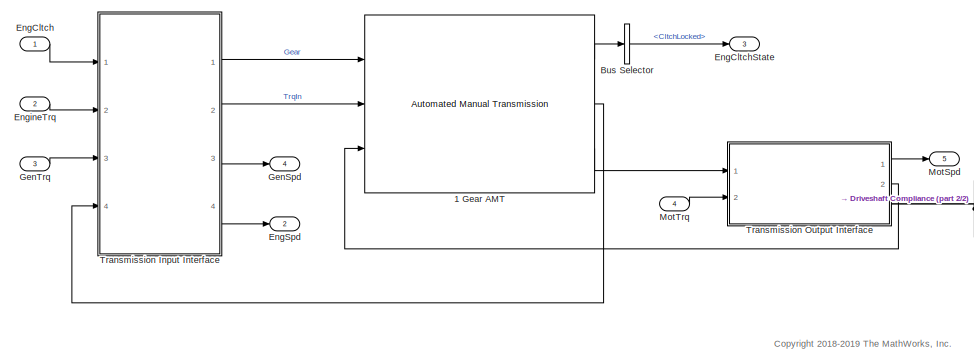
[diagram: root canvas - part 1/2, left side, full height]
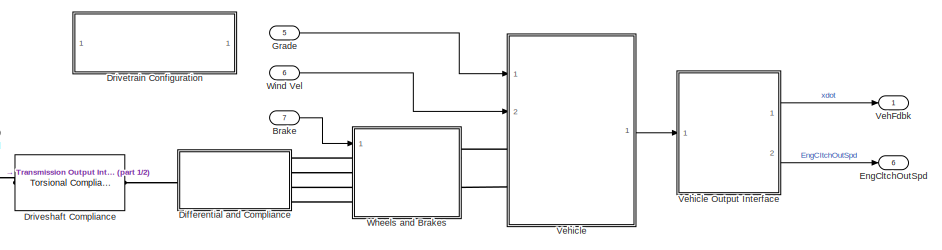
[diagram: root canvas - part 2/2, middle right region]
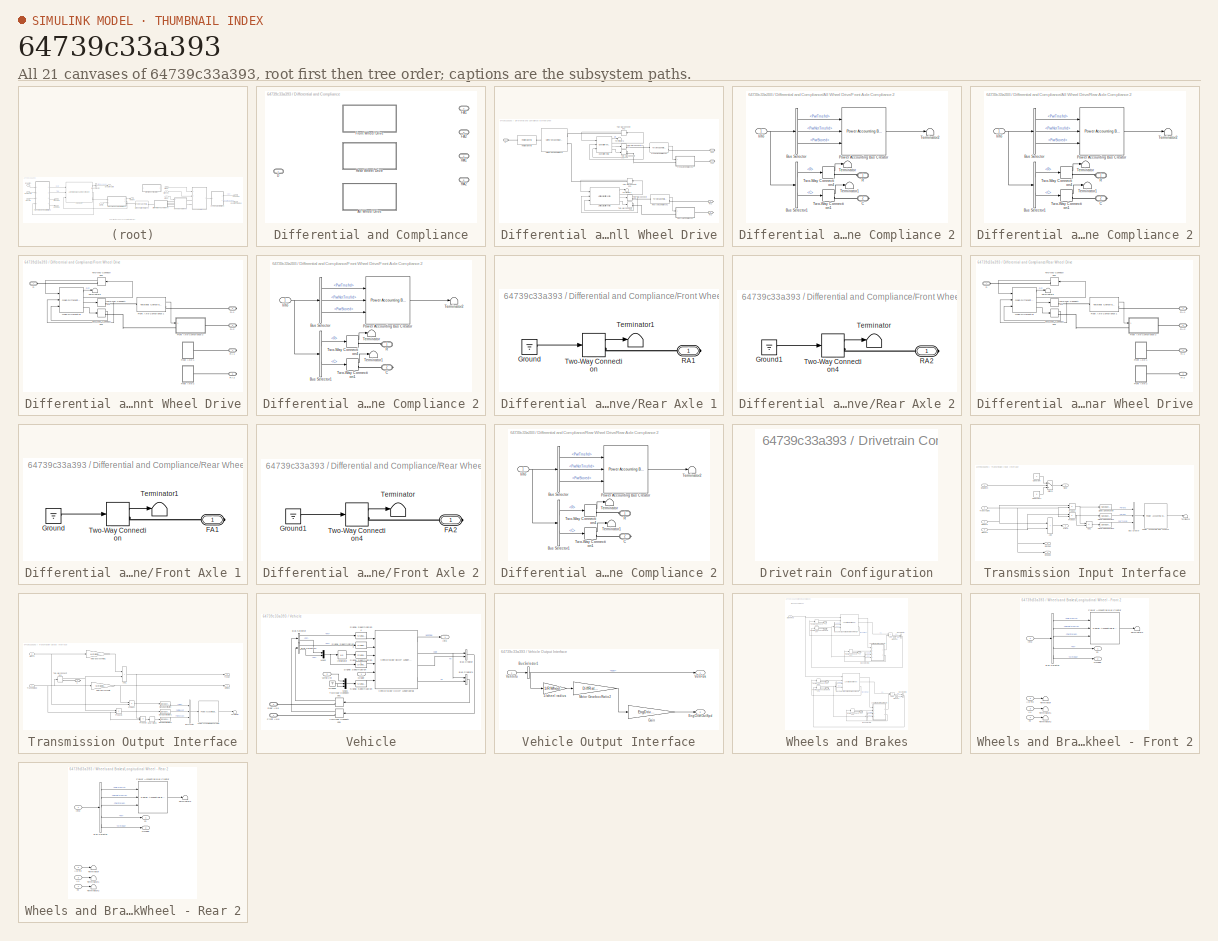
[diagram: thumbnail index - all 21 canvases of the model, root first then tree order]
MODEL slx_64739c33a393
KIND model
CONFIG AbsTol = auto
CONFIG EnableMultiTasking = off
CONFIG FixedStep = auto
CONFIG MaxStep = auto
CONFIG MinStep = auto
CONFIG RelTol = 1e-3
CONFIG SampleTimeConstraint = Unconstrained
CONFIG Solver = VariableStepAuto
CONFIG SolverName = VariableStepAuto
CONFIG StartTime = 0.0
CONFIG StopTime = 10.0
WORKSPACE source: mxarray member
WORKSPACE DiffRatio = 3.421
WORKSPACE EngDriveRatio = 0.813008130081
WORKSPACE Jengine = 0.22
WORKSPACE MotGbRatio = 2.45
WORKSPACE NF: Simulink.Parameter (value not decoded)
WORKSPACE NR: Simulink.Parameter (value not decoded)
WORKSPACE RWheel = 0.3
WORKSPACE b_axle: Simulink.Parameter (value not decoded)
WORKSPACE b_driveshaft: Simulink.Parameter (value not decoded)
WORKSPACE k_axle: Simulink.Parameter (value not decoded)
WORKSPACE k_driveshaft: Simulink.Parameter (value not decoded)
WORKSPACE wc_shaft: Simulink.Parameter (value not decoded)
BLOCK [Reference] 1 Gear AMT  REF=autolibtransamt/Automated Manual Transmission
  Ports = [3, 3]
  SourceBlock = autolibtransamt/Automated Manual Transmission
  SourceProductBaseCode = PW
  SourceType = Automated Manual Transmission
BLOCK [Inport] Brake
  Port = 7
BLOCK [BusSelector] Bus Selector
  OutputSignals = Cltch.CltchLocked
  Ports = [1, 1]
BLOCK [SubSystem] Differential and Compliance
  LabelModeActiveChoice = 0
  Ports = [0, 0, 0, 0, 0, 1, 4]
  RequestExecContextInheritance = off
  Variant = on
  VariantControlMode = Label
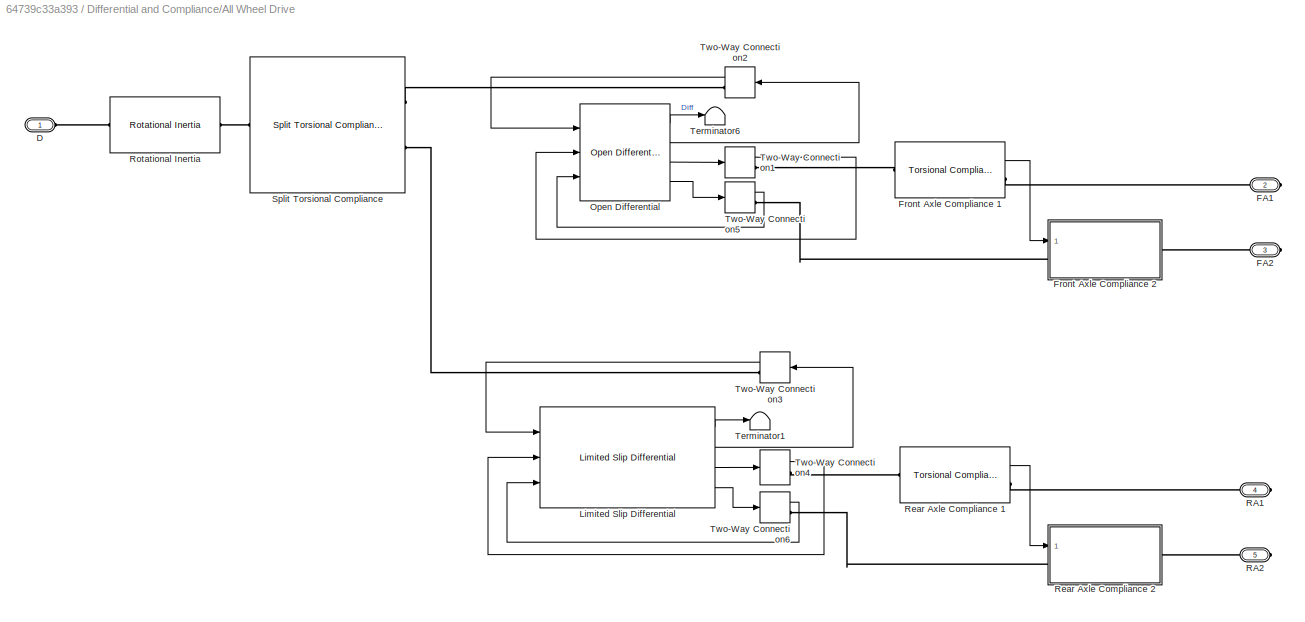
BLOCK [SubSystem] Differential and Compliance/All Wheel Drive
  Ports = [0, 0, 0, 0, 0, 1, 4]
  RequestExecContextInheritance = off
  VariantControl = 2
BLOCK [PMIOPort] Differential and Compliance/All Wheel Drive/D
  Side = Left
BLOCK [PMIOPort] Differential and Compliance/All Wheel Drive/FA1
  Port = 2
  Side = Right
BLOCK [PMIOPort] Differential and Compliance/All Wheel Drive/FA2
  Port = 3
  Side = Right
BLOCK [Reference] Differential and Compliance/All Wheel Drive/Front Axle Compliance 1  REF=autolibsharedcoupling/Torsional Compliance
  Ports = [0, 1, 0, 0, 0, 1, 1]
  SourceBlock = autolibsharedcoupling/Torsional Compliance
  SourceProductBaseCode = PW,MT,VE,VP
  SourceType = Torsional Compliance
BLOCK [SubSystem] Differential and Compliance/All Wheel Drive/Front Axle Compliance 2
  Ports = [1, 0, 0, 0, 0, 1, 1]
  RequestExecContextInheritance = off
BLOCK [BusSelector] Differential and Compliance/All Wheel Drive/Front Axle Compliance 2/Bus Selector
  OutputSignals = PwrInfo.PwrTrnsfrd,PwrInfo.PwrNotTrnsfrd,PwrInfo.PwrStored
  Ports = [1, 3]
BLOCK [BusSelector] Differential and Compliance/All Wheel Drive/Front Axle Compliance 2/Bus Selector1
  OutputSignals = Trq.R,Trq.C
  Ports = [1, 2]
BLOCK [PMIOPort] Differential and Compliance/All Wheel Drive/Front Axle Compliance 2/C
  Port = 2
  Side = Right
BLOCK [Inport] Differential and Compliance/All Wheel Drive/Front Axle Compliance 2/Info
BLOCK [Reference] Differential and Compliance/All Wheel Drive/Front Axle Compliance 2/Power Accounting Bus Creator  REF=autolibpowerinfoutils/Power Accounting Bus Creator
  Ports = [3, 1]
  SourceBlock = autolibpowerinfoutils/Power Accounting Bus Creator
  SourceProductBaseCode = PW,MT,VE,VP
  SourceType = Power Accounting Bus Creator
BLOCK [PMIOPort] Differential and Compliance/All Wheel Drive/Front Axle Compliance 2/R
  Side = Left
BLOCK [Terminator] Differential and Compliance/All Wheel Drive/Front Axle Compliance 2/Terminator
BLOCK [Terminator] Differential and Compliance/All Wheel Drive/Front Axle Compliance 2/Terminator1
BLOCK [Terminator] Differential and Compliance/All Wheel Drive/Front Axle Compliance 2/Terminator2
BLOCK [TwoWayConnection] Differential and Compliance/All Wheel Drive/Front Axle Compliance 2/Two-Way Connection1
  Ports = [1, 1, 0, 0, 0, 0, 1]
BLOCK [TwoWayConnection] Differential and Compliance/All Wheel Drive/Front Axle Compliance 2/Two-Way Connection4
  Ports = [1, 1, 0, 0, 0, 0, 1]
BLOCK [Reference] Differential and Compliance/All Wheel Drive/Limited Slip Differential  REF=autolibshareddiff/Limited Slip Differential
  Ports = [3, 4]
  SourceBlock = autolibshareddiff/Limited Slip Differential
  SourceProductBaseCode = PW,MT,VE,VP
  SourceType = Limited Slip Differential
BLOCK [Reference] Differential and Compliance/All Wheel Drive/Open Differential  REF=autolibshareddiff/Open Differential
  Ports = [3, 4]
  SourceBlock = autolibshareddiff/Open Differential
  SourceProductBaseCode = PW,MT,VE,VP
  SourceType = Open Differential
BLOCK [PMIOPort] Differential and Compliance/All Wheel Drive/RA1
  Port = 4
  Side = Right
BLOCK [PMIOPort] Differential and Compliance/All Wheel Drive/RA2
  Port = 5
  Side = Right
BLOCK [Reference] Differential and Compliance/All Wheel Drive/Rear Axle Compliance 1  REF=autolibsharedcoupling/Torsional Compliance
  Ports = [0, 1, 0, 0, 0, 1, 1]
  SourceBlock = autolibsharedcoupling/Torsional Compliance
  SourceProductBaseCode = PW,MT,VE,VP
  SourceType = Torsional Compliance
BLOCK [SubSystem] Differential and Compliance/All Wheel Drive/Rear Axle Compliance 2
  Ports = [1, 0, 0, 0, 0, 1, 1]
  RequestExecContextInheritance = off
BLOCK [BusSelector] Differential and Compliance/All Wheel Drive/Rear Axle Compliance 2/Bus Selector
  OutputSignals = PwrInfo.PwrTrnsfrd,PwrInfo.PwrNotTrnsfrd,PwrInfo.PwrStored
  Ports = [1, 3]
BLOCK [BusSelector] Differential and Compliance/All Wheel Drive/Rear Axle Compliance 2/Bus Selector1
  OutputSignals = Trq.R,Trq.C
  Ports = [1, 2]
BLOCK [PMIOPort] Differential and Compliance/All Wheel Drive/Rear Axle Compliance 2/C
  Port = 2
  Side = Right
BLOCK [Inport] Differential and Compliance/All Wheel Drive/Rear Axle Compliance 2/Info
BLOCK [Reference] Differential and Compliance/All Wheel Drive/Rear Axle Compliance 2/Power Accounting Bus Creator  REF=autolibpowerinfoutils/Power Accounting Bus Creator
  Ports = [3, 1]
  SourceBlock = autolibpowerinfoutils/Power Accounting Bus Creator
  SourceProductBaseCode = PW,MT,VE,VP
  SourceType = Power Accounting Bus Creator
BLOCK [PMIOPort] Differential and Compliance/All Wheel Drive/Rear Axle Compliance 2/R
  Side = Left
BLOCK [Terminator] Differential and Compliance/All Wheel Drive/Rear Axle Compliance 2/Terminator
BLOCK [Terminator] Differential and Compliance/All Wheel Drive/Rear Axle Compliance 2/Terminator1
BLOCK [Terminator] Differential and Compliance/All Wheel Drive/Rear Axle Compliance 2/Terminator2
BLOCK [TwoWayConnection] Differential and Compliance/All Wheel Drive/Rear Axle Compliance 2/Two-Way Connection1
  Ports = [1, 1, 0, 0, 0, 0, 1]
BLOCK [TwoWayConnection] Differential and Compliance/All Wheel Drive/Rear Axle Compliance 2/Two-Way Connection4
  Ports = [1, 1, 0, 0, 0, 0, 1]
BLOCK [Reference] Differential and Compliance/All Wheel Drive/Rotational Inertia  REF=autolibsharedcoupling/Rotational Inertia
  Ports = [0, 0, 0, 0, 0, 1, 1]
  SourceBlock = autolibsharedcoupling/Rotational Inertia
  SourceProductBaseCode = PW,MT,VE,VP
  SourceType = Rotational Inertia
BLOCK [Reference] Differential and Compliance/All Wheel Drive/Split Torsional Compliance  REF=autolibsharedcoupling/Split Torsional Compliance
  Ports = [0, 0, 0, 0, 0, 1, 2]
  SourceBlock = autolibsharedcoupling/Split Torsional Compliance
  SourceProductBaseCode = PW,MT,VE,VP
  SourceType = Split Torsional Compliance
BLOCK [Terminator] Differential and Compliance/All Wheel Drive/Terminator1
BLOCK [Terminator] Differential and Compliance/All Wheel Drive/Terminator6
BLOCK [TwoWayConnection] Differential and Compliance/All Wheel Drive/Two-Way Connection1
  Ports = [1, 1, 0, 0, 0, 0, 1]
BLOCK [TwoWayConnection] Differential and Compliance/All Wheel Drive/Two-Way Connection2
  Ports = [1, 1, 0, 0, 0, 0, 1]
BLOCK [TwoWayConnection] Differential and Compliance/All Wheel Drive/Two-Way Connection3
  Ports = [1, 1, 0, 0, 0, 0, 1]
BLOCK [TwoWayConnection] Differential and Compliance/All Wheel Drive/Two-Way Connection4
  NameLocation = top
  Ports = [1, 1, 0, 0, 0, 0, 1]
BLOCK [TwoWayConnection] Differential and Compliance/All Wheel Drive/Two-Way Connection5
  Ports = [1, 1, 0, 0, 0, 0, 1]
BLOCK [TwoWayConnection] Differential and Compliance/All Wheel Drive/Two-Way Connection6
  Ports = [1, 1, 0, 0, 0, 0, 1]
BLOCK [PMIOPort] Differential and Compliance/D
  Side = Left
BLOCK [PMIOPort] Differential and Compliance/FA1
  Port = 2
  Side = Right
BLOCK [PMIOPort] Differential and Compliance/FA2
  Port = 3
  Side = Right
BLOCK [SubSystem] Differential and Compliance/Front Wheel Drive
  Ports = [0, 0, 0, 0, 0, 1, 4]
  RequestExecContextInheritance = off
  VariantControl = 0
BLOCK [PMIOPort] Differential and Compliance/Front Wheel Drive/D
  Side = Left
BLOCK [PMIOPort] Differential and Compliance/Front Wheel Drive/FA1
  Port = 2
  Side = Right
BLOCK [PMIOPort] Differential and Compliance/Front Wheel Drive/FA2
  Port = 3
  Side = Right
BLOCK [Reference] Differential and Compliance/Front Wheel Drive/Front Axle Compliance 1  REF=autolibsharedcoupling/Torsional Compliance
  Ports = [0, 1, 0, 0, 0, 1, 1]
  SourceBlock = autolibsharedcoupling/Torsional Compliance
  SourceProductBaseCode = PW,MT,VE,VP
  SourceType = Torsional Compliance
BLOCK [SubSystem] Differential and Compliance/Front Wheel Drive/Front Axle Compliance 2
  Ports = [1, 0, 0, 0, 0, 1, 1]
  RequestExecContextInheritance = off
BLOCK [BusSelector] Differential and Compliance/Front Wheel Drive/Front Axle Compliance 2/Bus Selector
  OutputSignals = PwrInfo.PwrTrnsfrd,PwrInfo.PwrNotTrnsfrd,PwrInfo.PwrStored
  Ports = [1, 3]
BLOCK [BusSelector] Differential and Compliance/Front Wheel Drive/Front Axle Compliance 2/Bus Selector1
  OutputSignals = Trq.R,Trq.C
  Ports = [1, 2]
BLOCK [PMIOPort] Differential and Compliance/Front Wheel Drive/Front Axle Compliance 2/C
  Port = 2
  Side = Right
BLOCK [Inport] Differential and Compliance/Front Wheel Drive/Front Axle Compliance 2/Info
BLOCK [Reference] Differential and Compliance/Front Wheel Drive/Front Axle Compliance 2/Power Accounting Bus Creator  REF=autolibpowerinfoutils/Power Accounting Bus Creator
  Ports = [3, 1]
  SourceBlock = autolibpowerinfoutils/Power Accounting Bus Creator
  SourceProductBaseCode = PW,MT,VE,VP
  SourceType = Power Accounting Bus Creator
BLOCK [PMIOPort] Differential and Compliance/Front Wheel Drive/Front Axle Compliance 2/R
  Side = Left
BLOCK [Terminator] Differential and Compliance/Front Wheel Drive/Front Axle Compliance 2/Terminator
BLOCK [Terminator] Differential and Compliance/Front Wheel Drive/Front Axle Compliance 2/Terminator1
BLOCK [Terminator] Differential and Compliance/Front Wheel Drive/Front Axle Compliance 2/Terminator2
BLOCK [TwoWayConnection] Differential and Compliance/Front Wheel Drive/Front Axle Compliance 2/Two-Way Connection1
  Ports = [1, 1, 0, 0, 0, 0, 1]
BLOCK [TwoWayConnection] Differential and Compliance/Front Wheel Drive/Front Axle Compliance 2/Two-Way Connection4
  Ports = [1, 1, 0, 0, 0, 0, 1]
BLOCK [Reference] Differential and Compliance/Front Wheel Drive/Open Differential  REF=autolibshareddiff/Open Differential
  Ports = [3, 4]
  SourceBlock = autolibshareddiff/Open Differential
  SourceProductBaseCode = PW,MT,VE,VP
  SourceType = Open Differential
BLOCK [PMIOPort] Differential and Compliance/Front Wheel Drive/RA1
  Port = 4
  Side = Right
BLOCK [PMIOPort] Differential and Compliance/Front Wheel Drive/RA2
  Port = 5
  Side = Right
BLOCK [SubSystem] Differential and Compliance/Front Wheel Drive/Rear Axle 1
  Ports = [0, 0, 0, 0, 0, 0, 1]
  RequestExecContextInheritance = off
BLOCK [Ground] Differential and Compliance/Front Wheel Drive/Rear Axle 1/Ground
BLOCK [PMIOPort] Differential and Compliance/Front Wheel Drive/Rear Axle 1/RA1
  Side = Right
BLOCK [Terminator] Differential and Compliance/Front Wheel Drive/Rear Axle 1/Terminator1
BLOCK [TwoWayConnection] Differential and Compliance/Front Wheel Drive/Rear Axle 1/Two-Way Connection
  Ports = [1, 1, 0, 0, 0, 0, 1]
BLOCK [SubSystem] Differential and Compliance/Front Wheel Drive/Rear Axle 2
  Ports = [0, 0, 0, 0, 0, 0, 1]
  RequestExecContextInheritance = off
BLOCK [Ground] Differential and Compliance/Front Wheel Drive/Rear Axle 2/Ground1
BLOCK [PMIOPort] Differential and Compliance/Front Wheel Drive/Rear Axle 2/RA2
  Side = Right
BLOCK [Terminator] Differential and Compliance/Front Wheel Drive/Rear Axle 2/Terminator
BLOCK [TwoWayConnection] Differential and Compliance/Front Wheel Drive/Rear Axle 2/Two-Way Connection4
  Ports = [1, 1, 0, 0, 0, 0, 1]
BLOCK [Terminator] Differential and Compliance/Front Wheel Drive/Terminator6
BLOCK [TwoWayConnection] Differential and Compliance/Front Wheel Drive/Two-Way Connection1
  Ports = [1, 1, 0, 0, 0, 0, 1]
BLOCK [TwoWayConnection] Differential and Compliance/Front Wheel Drive/Two-Way Connection2
  Ports = [1, 1, 0, 0, 0, 0, 1]
BLOCK [TwoWayConnection] Differential and Compliance/Front Wheel Drive/Two-Way Connection3
  Ports = [1, 1, 0, 0, 0, 0, 1]
BLOCK [PMIOPort] Differential and Compliance/RA1
  Port = 4
  Side = Right
BLOCK [PMIOPort] Differential and Compliance/RA2
  Port = 5
  Side = Right
BLOCK [SubSystem] Differential and Compliance/Rear Wheel Drive
  Ports = [0, 0, 0, 0, 0, 1, 4]
  RequestExecContextInheritance = off
  VariantControl = 1
BLOCK [PMIOPort] Differential and Compliance/Rear Wheel Drive/D
  Side = Left
BLOCK [PMIOPort] Differential and Compliance/Rear Wheel Drive/FA1
  Port = 2
  Side = Right
BLOCK [PMIOPort] Differential and Compliance/Rear Wheel Drive/FA2
  Port = 3
  Side = Right
BLOCK [SubSystem] Differential and Compliance/Rear Wheel Drive/Front Axle 1
  Ports = [0, 0, 0, 0, 0, 0, 1]
  RequestExecContextInheritance = off
BLOCK [PMIOPort] Differential and Compliance/Rear Wheel Drive/Front Axle 1/FA1
  Side = Right
BLOCK [Ground] Differential and Compliance/Rear Wheel Drive/Front Axle 1/Ground
BLOCK [Terminator] Differential and Compliance/Rear Wheel Drive/Front Axle 1/Terminator1
BLOCK [TwoWayConnection] Differential and Compliance/Rear Wheel Drive/Front Axle 1/Two-Way Connection
  Ports = [1, 1, 0, 0, 0, 0, 1]
BLOCK [SubSystem] Differential and Compliance/Rear Wheel Drive/Front Axle 2
  Ports = [0, 0, 0, 0, 0, 0, 1]
  RequestExecContextInheritance = off
BLOCK [PMIOPort] Differential and Compliance/Rear Wheel Drive/Front Axle 2/FA2
  Side = Right
BLOCK [Ground] Differential and Compliance/Rear Wheel Drive/Front Axle 2/Ground1
BLOCK [Terminator] Differential and Compliance/Rear Wheel Drive/Front Axle 2/Terminator
BLOCK [TwoWayConnection] Differential and Compliance/Rear Wheel Drive/Front Axle 2/Two-Way Connection4
  Ports = [1, 1, 0, 0, 0, 0, 1]
BLOCK [Reference] Differential and Compliance/Rear Wheel Drive/Open Differential  REF=autolibshareddiff/Open Differential
  Ports = [3, 4]
  SourceBlock = autolibshareddiff/Open Differential
  SourceProductBaseCode = PW,MT,VE,VP
  SourceType = Open Differential
BLOCK [PMIOPort] Differential and Compliance/Rear Wheel Drive/RA1
  Port = 4
  Side = Right
BLOCK [PMIOPort] Differential and Compliance/Rear Wheel Drive/RA2
  Port = 5
  Side = Right
BLOCK [Reference] Differential and Compliance/Rear Wheel Drive/Rear Axle Compliance 1  REF=autolibsharedcoupling/Torsional Compliance
  Ports = [0, 1, 0, 0, 0, 1, 1]
  SourceBlock = autolibsharedcoupling/Torsional Compliance
  SourceProductBaseCode = PW,MT,VE,VP
  SourceType = Torsional Compliance
BLOCK [SubSystem] Differential and Compliance/Rear Wheel Drive/Rear Axle Compliance 2
  Ports = [1, 0, 0, 0, 0, 1, 1]
  RequestExecContextInheritance = off
BLOCK [BusSelector] Differential and Compliance/Rear Wheel Drive/Rear Axle Compliance 2/Bus Selector
  OutputSignals = PwrInfo.PwrTrnsfrd,PwrInfo.PwrNotTrnsfrd,PwrInfo.PwrStored
  Ports = [1, 3]
BLOCK [BusSelector] Differential and Compliance/Rear Wheel Drive/Rear Axle Compliance 2/Bus Selector1
  OutputSignals = Trq.R,Trq.C
  Ports = [1, 2]
BLOCK [PMIOPort] Differential and Compliance/Rear Wheel Drive/Rear Axle Compliance 2/C
  Port = 2
  Side = Right
BLOCK [Inport] Differential and Compliance/Rear Wheel Drive/Rear Axle Compliance 2/Info
BLOCK [Reference] Differential and Compliance/Rear Wheel Drive/Rear Axle Compliance 2/Power Accounting Bus Creator  REF=autolibpowerinfoutils/Power Accounting Bus Creator
  Ports = [3, 1]
  SourceBlock = autolibpowerinfoutils/Power Accounting Bus Creator
  SourceProductBaseCode = PW,MT,VE,VP
  SourceType = Power Accounting Bus Creator
BLOCK [PMIOPort] Differential and Compliance/Rear Wheel Drive/Rear Axle Compliance 2/R
  Side = Left
BLOCK [Terminator] Differential and Compliance/Rear Wheel Drive/Rear Axle Compliance 2/Terminator
BLOCK [Terminator] Differential and Compliance/Rear Wheel Drive/Rear Axle Compliance 2/Terminator1
BLOCK [Terminator] Differential and Compliance/Rear Wheel Drive/Rear Axle Compliance 2/Terminator2
BLOCK [TwoWayConnection] Differential and Compliance/Rear Wheel Drive/Rear Axle Compliance 2/Two-Way Connection1
  Ports = [1, 1, 0, 0, 0, 0, 1]
BLOCK [TwoWayConnection] Differential and Compliance/Rear Wheel Drive/Rear Axle Compliance 2/Two-Way Connection4
  Ports = [1, 1, 0, 0, 0, 0, 1]
BLOCK [Terminator] Differential and Compliance/Rear Wheel Drive/Terminator6
BLOCK [TwoWayConnection] Differential and Compliance/Rear Wheel Drive/Two-Way Connection1
  Ports = [1, 1, 0, 0, 0, 0, 1]
BLOCK [TwoWayConnection] Differential and Compliance/Rear Wheel Drive/Two-Way Connection2
  Ports = [1, 1, 0, 0, 0, 0, 1]
BLOCK [TwoWayConnection] Differential and Compliance/Rear Wheel Drive/Two-Way Connection3
  Ports = [1, 1, 0, 0, 0, 0, 1]
BLOCK [Reference] Driveshaft Compliance  REF=autolibsharedcoupling/Torsional Compliance
  Ports = [0, 0, 0, 0, 0, 1, 1]
  SourceBlock = autolibsharedcoupling/Torsional Compliance
  SourceProductBaseCode = PW,MT,VE,VP
  SourceType = Torsional Compliance
BLOCK [SubSystem] Drivetrain Configuration
  AttributesFormatString = Active Mode: %<drivetrainMode>
  Ports = []
  RequestExecContextInheritance = off
BLOCK [Inport] EngCltch
  OutDataTypeStr = boolean
BLOCK [Outport] EngCltchOutSpd
  BusOutputAsStruct = on
  Port = 6
  SignalType = real
  VarSizeSig = No
  VectorParamsAs1DForOutWhenUnconnected = off
BLOCK [Outport] EngCltchState
  BusOutputAsStruct = on
  Port = 3
  SignalType = real
  VarSizeSig = No
  VectorParamsAs1DForOutWhenUnconnected = off
BLOCK [Outport] EngSpd
  BusOutputAsStruct = on
  Port = 2
  SignalType = real
  VarSizeSig = No
  VectorParamsAs1DForOutWhenUnconnected = off
BLOCK [Inport] EngineTrq
  Port = 2
BLOCK [Outport] GenSpd
  BusOutputAsStruct = on
  Port = 4
  SignalType = real
  VarSizeSig = No
  VectorParamsAs1DForOutWhenUnconnected = off
BLOCK [Inport] GenTrq
  Port = 3
BLOCK [Inport] Grade
  Port = 5
BLOCK [Outport] MotSpd
  BusOutputAsStruct = on
  Port = 5
  SignalType = real
  VarSizeSig = No
  VectorParamsAs1DForOutWhenUnconnected = off
BLOCK [Inport] MotTrq
  Port = 4
BLOCK [SubSystem] Transmission Input Interface
  Ports = [4, 4]
  RequestExecContextInheritance = off
BLOCK [Sum] Transmission Input Interface/Add
  IconShape = rectangular
  Ports = [2, 1]
BLOCK [Sum] Transmission Input Interface/Add1
  IconShape = rectangular
  Inputs = --
  Ports = [2, 1]
BLOCK [BusCreator] Transmission Input Interface/Bus Creator
  DisplayOption = bar
  InheritFromInputs = on
  Inputs = 3
  Ports = [3, 1]
BLOCK [Constant] Transmission Input Interface/Constant
BLOCK [Constant] Transmission Input Interface/Constant1
  Value = 0
BLOCK [Inport] Transmission Input Interface/EngCltch
  OutDataTypeStr = boolean
BLOCK [Outport] Transmission Input Interface/EngSpd
  Port = 4
  VectorParamsAs1DForOutWhenUnconnected = off
BLOCK [Inport] Transmission Input Interface/EngTrq
  Port = 2
BLOCK [Outport] Transmission Input Interface/Gear
  VectorParamsAs1DForOutWhenUnconnected = off
BLOCK [Outport] Transmission Input Interface/GenSpd
  Port = 3
  VectorParamsAs1DForOutWhenUnconnected = off
BLOCK [Inport] Transmission Input Interface/GenTrq
  Port = 3
BLOCK [Reference] Transmission Input Interface/Power Accounting Bus Creator  REF=autolibpowerinfoutils/Power Accounting Bus Creator
  Ports = [1, 1]
  SourceBlock = autolibpowerinfoutils/Power Accounting Bus Creator
  SourceProductBaseCode = PW,MT,VE,VP
  SourceType = Power Accounting Bus Creator
BLOCK [Product] Transmission Input Interface/Product
  Ports = [2, 1]
BLOCK [Product] Transmission Input Interface/Product1
  Ports = [2, 1]
BLOCK [SignalSpecification] Transmission Input Interface/Signal Specification
  Unit = W
BLOCK [SignalSpecification] Transmission Input Interface/Signal Specification1
  Unit = W
BLOCK [SignalSpecification] Transmission Input Interface/Signal Specification2
  Unit = W
BLOCK [Switch] Transmission Input Interface/Switch
  Criteria = u2 ~= 0
  InputSameDT = off
  SaturateOnIntegerOverflow = off
BLOCK [Terminator] Transmission Input Interface/Terminator
BLOCK [Inport] Transmission Input Interface/TransInSpd
  Port = 4
BLOCK [Outport] Transmission Input Interface/TrqIn
  Port = 2
  VectorParamsAs1DForOutWhenUnconnected = off
BLOCK [SubSystem] Transmission Output Interface
  Ports = [2, 2, 0, 0, 0, 0, 1]
  RequestExecContextInheritance = off
BLOCK [Sum] Transmission Output Interface/Add1
  IconShape = rectangular
  Ports = [2, 1]
BLOCK [BusCreator] Transmission Output Interface/Bus Creator
  DisplayOption = bar
  InheritFromInputs = on
  Inputs = 3
  Ports = [3, 1]
BLOCK [PMIOPort] Transmission Output Interface/C
  Side = Right
BLOCK [Outport] Transmission Output Interface/MotSpd
  VectorParamsAs1DForOutWhenUnconnected = off
BLOCK [Inport] Transmission Output Interface/MotTrq
  Port = 2
BLOCK [Gain] Transmission Output Interface/Motor Gearbox Ratio
  Gain = MotGbRatio
BLOCK [Gain] Transmission Output Interface/Motor Gearbox Ratio1
  Gain = MotGbRatio
BLOCK [Reference] Transmission Output Interface/Power Accounting Bus Creator  REF=autolibpowerinfoutils/Power Accounting Bus Creator
  Ports = [1, 1]
  SourceBlock = autolibpowerinfoutils/Power Accounting Bus Creator
  SourceProductBaseCode = PW,MT,VE,VP
  SourceType = Power Accounting Bus Creator
BLOCK [Product] Transmission Output Interface/Product
  Ports = [2, 1]
BLOCK [Product] Transmission Output Interface/Product1
  Ports = [2, 1]
BLOCK [Product] Transmission Output Interface/Product2
  Ports = [2, 1]
BLOCK [SignalSpecification] Transmission Output Interface/Signal Specification
  Unit = W
BLOCK [SignalSpecification] Transmission Output Interface/Signal Specification1
  Unit = W
BLOCK [SignalSpecification] Transmission Output Interface/Signal Specification2
  Unit = W
BLOCK [Terminator] Transmission Output Interface/Terminator
BLOCK [Inport] Transmission Output Interface/TransOutSpd
BLOCK [Outport] Transmission Output Interface/TrqOut
  Port = 2
  VectorParamsAs1DForOutWhenUnconnected = off
BLOCK [TwoWayConnection] Transmission Output Interface/Two-Way Connection1
  NameLocation = top
  Ports = [1, 1, 0, 0, 0, 0, 1]
BLOCK [UnaryMinus] Transmission Output Interface/Unary Minus
BLOCK [Outport] VehFdbk
  VectorParamsAs1DForOutWhenUnconnected = off
BLOCK [SubSystem] Vehicle
  Ports = [2, 1, 0, 0, 0, 2]
  RequestExecContextInheritance = off
BLOCK [SubSystem] Vehicle Output Interface
  Ports = [1, 2]
  RequestExecContextInheritance = off
BLOCK [Gain] Vehicle Output Interface/1//wheel radius
  Gain = 1/RWheel
BLOCK [BusSelector] Vehicle Output Interface/Bus Selector1
  OutputSignals = BdyFrm.Cg.Vel.xdot
  Ports = [1, 1]
BLOCK [Outport] Vehicle Output Interface/EngCltchOutSpd
  Port = 2
  VectorParamsAs1DForOutWhenUnconnected = off
BLOCK [Gain] Vehicle Output Interface/Gain
  Gain = EngDriveRatio
BLOCK [Gain] Vehicle Output Interface/Motor Gearbox Ratio2
  Gain = DiffRatio
BLOCK [Outport] Vehicle Output Interface/VehFbk
  VectorParamsAs1DForOutWhenUnconnected = off
BLOCK [Inport] Vehicle Output Interface/VehInfo
BLOCK [BusCreator] Vehicle/Bus Creator
  DisplayOption = bar
  InheritFromInputs = on
  Inputs = 2
  Ports = [2, 1]
BLOCK [BusCreator] Vehicle/Bus Creator1
  DisplayOption = bar
  InheritFromInputs = on
  Inputs = 2
  Ports = [2, 1]
BLOCK [BusSelector] Vehicle/Bus Selector
  OutputSignals = Fx,Fz
  Ports = [1, 2]
BLOCK [BusSelector] Vehicle/Bus Selector2
  OutputSignals = Fx,Fz
  Ports = [1, 2]
BLOCK [PMIOPort] Vehicle/Front Axle
  Side = Left
BLOCK [Inport] Vehicle/Grade
  Unit = deg
BLOCK [Ground] Vehicle/Ground
BLOCK [Outport] Vehicle/Info
  VectorParamsAs1DForOutWhenUnconnected = off
BLOCK [Integrator] Vehicle/Integrator
  Ports = [1, 1]
BLOCK [Mux] Vehicle/Mux1
  DisplayOption = bar
  Inputs = 3
  Ports = [3, 1]
BLOCK [Mux] Vehicle/Mux2
  DisplayOption = bar
  Inputs = 2
  Ports = [2, 1]
BLOCK [PMIOPort] Vehicle/Rear Axle
  Port = 2
  Side = Left
BLOCK [SignalSpecification] Vehicle/Signal Specification
  Unit = m/s
BLOCK [SignalSpecification] Vehicle/Signal Specification1
  Unit = m
BLOCK [SignalSpecification] Vehicle/Signal Specification2
  Unit = m/s
BLOCK [SignalSpecification] Vehicle/Signal Specification3
  Unit = N
BLOCK [SignalSpecification] Vehicle/Signal Specification4
  Unit = N
BLOCK [TwoWayConnection] Vehicle/Two-Way Connection1
  Ports = [1, 1, 0, 0, 0, 0, 1]
BLOCK [TwoWayConnection] Vehicle/Two-Way Connection8
  Ports = [1, 1, 0, 0, 0, 0, 1]
BLOCK [Reference] Vehicle/Vehicle Body 3 DOF Longitudinal  REF=autolibshared/Vehicle Body 3DOF Longitudinal
  Ports = [6, 4]
  SourceBlock = autolibshared/Vehicle Body 3DOF Longitudinal
  SourceProductBaseCode = PW,MT,VE,VP
  SourceType = Vehicle Body 3DOF Longitudinal
BLOCK [Inport] Vehicle/Wind Vel
  Port = 2
  Unit = m/s
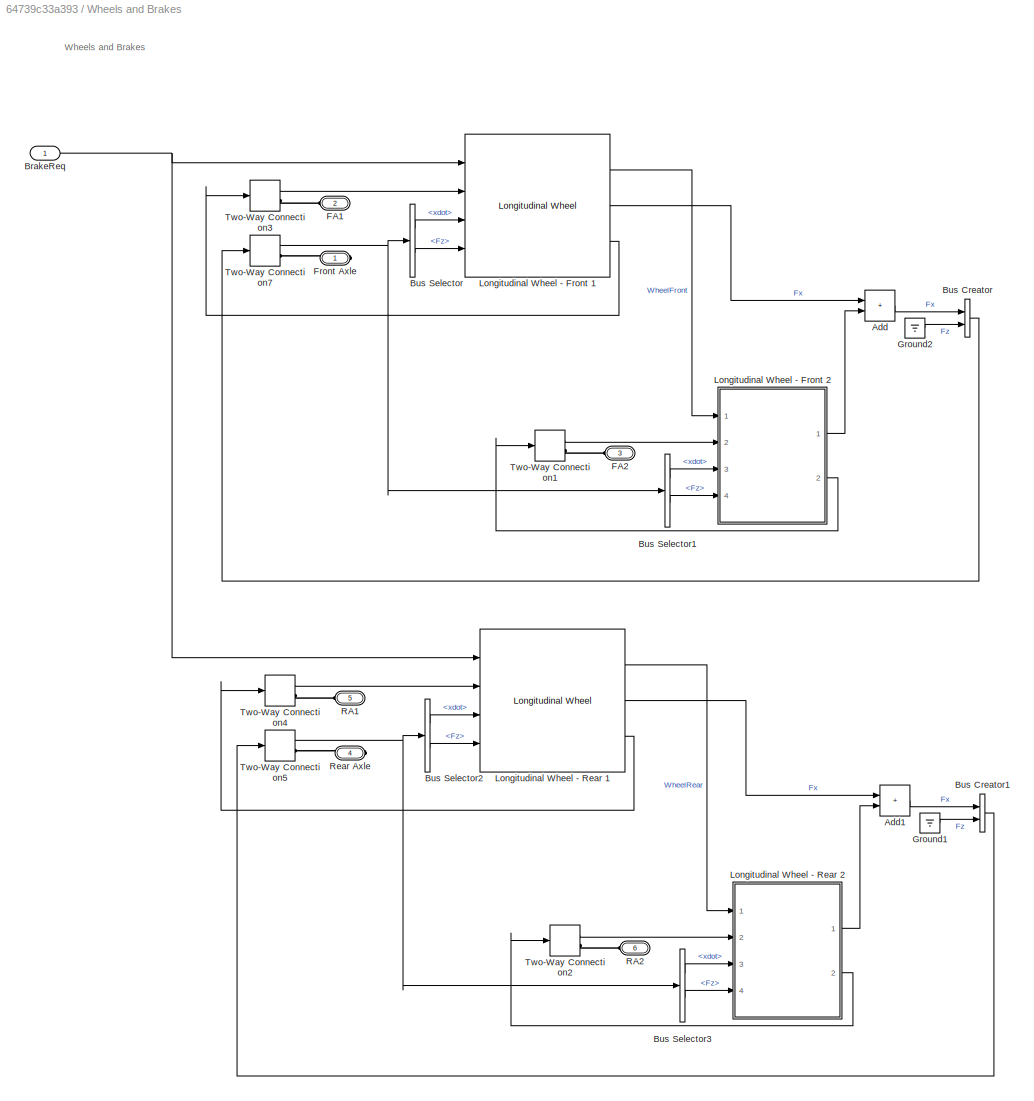
BLOCK [SubSystem] Wheels and Brakes
  Ports = [1, 0, 0, 0, 0, 4, 2]
  RequestExecContextInheritance = off
  VariantControl = 0
BLOCK [Sum] Wheels and Brakes/Add
  IconShape = rectangular
  Ports = [2, 1]
BLOCK [Sum] Wheels and Brakes/Add1
  IconShape = rectangular
  Ports = [2, 1]
BLOCK [Inport] Wheels and Brakes/BrakeReq
BLOCK [BusCreator] Wheels and Brakes/Bus Creator
  DisplayOption = bar
  InheritFromInputs = on
  Inputs = 2
  Ports = [2, 1]
BLOCK [BusCreator] Wheels and Brakes/Bus Creator1
  DisplayOption = bar
  InheritFromInputs = on
  Inputs = 2
  Ports = [2, 1]
BLOCK [BusSelector] Wheels and Brakes/Bus Selector
  OutputSignals = xdot,Fz
  Ports = [1, 2]
BLOCK [BusSelector] Wheels and Brakes/Bus Selector1
  OutputSignals = xdot,Fz
  Ports = [1, 2]
BLOCK [BusSelector] Wheels and Brakes/Bus Selector2
  OutputSignals = xdot,Fz
  Ports = [1, 2]
BLOCK [BusSelector] Wheels and Brakes/Bus Selector3
  OutputSignals = xdot,Fz
  Ports = [1, 2]
BLOCK [PMIOPort] Wheels and Brakes/FA1
  Port = 2
  Side = Left
BLOCK [PMIOPort] Wheels and Brakes/FA2
  Port = 3
  Side = Left
BLOCK [PMIOPort] Wheels and Brakes/Front Axle
  Side = Right
BLOCK [Ground] Wheels and Brakes/Ground1
BLOCK [Ground] Wheels and Brakes/Ground2
BLOCK [Reference] Wheels and Brakes/Longitudinal Wheel - Front 1  REF=autolibshared/Longitudinal Wheel
  AttributesFormatString = Brake Type: %<BrakeType>
  Ports = [4, 3]
  SourceBlock = autolibshared/Longitudinal Wheel
  SourceProductBaseCode = PW,MT,VE,VP
  SourceType = Longitudinal Wheel
BLOCK [SubSystem] Wheels and Brakes/Longitudinal Wheel - Front 2
  Ports = [4, 2]
  RequestExecContextInheritance = off
BLOCK [Inport] Wheels and Brakes/Longitudinal Wheel - Front 2/AxlTrq
  Port = 2
BLOCK [BusSelector] Wheels and Brakes/Longitudinal Wheel - Front 2/Bus Selector
  OutputSignals = PwrInfo.PwrTrnsfrd,PwrInfo.PwrNotTrnsfrd,PwrInfo.PwrStored,Fx,Omega
  Ports = [1, 5]
BLOCK [Outport] Wheels and Brakes/Longitudinal Wheel - Front 2/Fx
  VectorParamsAs1DForOutWhenUnconnected = off
BLOCK [Inport] Wheels and Brakes/Longitudinal Wheel - Front 2/Fz
  Port = 4
BLOCK [Inport] Wheels and Brakes/Longitudinal Wheel - Front 2/Info
BLOCK [Outport] Wheels and Brakes/Longitudinal Wheel - Front 2/Omega
  Port = 2
  VectorParamsAs1DForOutWhenUnconnected = off
BLOCK [Reference] Wheels and Brakes/Longitudinal Wheel - Front 2/Power Accounting Bus Creator  REF=autolibpowerinfoutils/Power Accounting Bus Creator
  Ports = [3, 1]
  SourceBlock = autolibpowerinfoutils/Power Accounting Bus Creator
  SourceProductBaseCode = PW,MT,VE,VP
  SourceType = Power Accounting Bus Creator
BLOCK [Terminator] Wheels and Brakes/Longitudinal Wheel - Front 2/Terminator
BLOCK [Terminator] Wheels and Brakes/Longitudinal Wheel - Front 2/Terminator1
BLOCK [Terminator] Wheels and Brakes/Longitudinal Wheel - Front 2/Terminator2
BLOCK [Terminator] Wheels and Brakes/Longitudinal Wheel - Front 2/Terminator3
BLOCK [Inport] Wheels and Brakes/Longitudinal Wheel - Front 2/Vx
  Port = 3
BLOCK [Reference] Wheels and Brakes/Longitudinal Wheel - Rear 1  REF=autolibshared/Longitudinal Wheel
  AttributesFormatString = Brake Type: %<BrakeType>
  Ports = [4, 3]
  SourceBlock = autolibshared/Longitudinal Wheel
  SourceProductBaseCode = PW,MT,VE,VP
  SourceType = Longitudinal Wheel
BLOCK [SubSystem] Wheels and Brakes/Longitudinal Wheel - Rear 2
  Ports = [4, 2]
  RequestExecContextInheritance = off
BLOCK [Inport] Wheels and Brakes/Longitudinal Wheel - Rear 2/AxlTrq
  Port = 2
BLOCK [BusSelector] Wheels and Brakes/Longitudinal Wheel - Rear 2/Bus Selector
  OutputSignals = PwrInfo.PwrTrnsfrd,PwrInfo.PwrNotTrnsfrd,PwrInfo.PwrStored,Fx,Omega
  Ports = [1, 5]
BLOCK [Outport] Wheels and Brakes/Longitudinal Wheel - Rear 2/Fx
  VectorParamsAs1DForOutWhenUnconnected = off
BLOCK [Inport] Wheels and Brakes/Longitudinal Wheel - Rear 2/Fz
  Port = 4
BLOCK [Inport] Wheels and Brakes/Longitudinal Wheel - Rear 2/Info
BLOCK [Outport] Wheels and Brakes/Longitudinal Wheel - Rear 2/Omega
  Port = 2
  VectorParamsAs1DForOutWhenUnconnected = off
BLOCK [Reference] Wheels and Brakes/Longitudinal Wheel - Rear 2/Power Accounting Bus Creator  REF=autolibpowerinfoutils/Power Accounting Bus Creator
  Ports = [3, 1]
  SourceBlock = autolibpowerinfoutils/Power Accounting Bus Creator
  SourceProductBaseCode = PW,MT,VE,VP
  SourceType = Power Accounting Bus Creator
BLOCK [Terminator] Wheels and Brakes/Longitudinal Wheel - Rear 2/Terminator
BLOCK [Terminator] Wheels and Brakes/Longitudinal Wheel - Rear 2/Terminator1
BLOCK [Terminator] Wheels and Brakes/Longitudinal Wheel - Rear 2/Terminator2
BLOCK [Terminator] Wheels and Brakes/Longitudinal Wheel - Rear 2/Terminator3
BLOCK [Inport] Wheels and Brakes/Longitudinal Wheel - Rear 2/Vx
  Port = 3
BLOCK [PMIOPort] Wheels and Brakes/RA1
  Port = 5
  Side = Left
BLOCK [PMIOPort] Wheels and Brakes/RA2
  Port = 6
  Side = Left
BLOCK [PMIOPort] Wheels and Brakes/Rear Axle
  Port = 4
  Side = Right
BLOCK [TwoWayConnection] Wheels and Brakes/Two-Way Connection1
  Ports = [1, 1, 0, 0, 0, 0, 1]
BLOCK [TwoWayConnection] Wheels and Brakes/Two-Way Connection2
  Ports = [1, 1, 0, 0, 0, 0, 1]
BLOCK [TwoWayConnection] Wheels and Brakes/Two-Way Connection3
  Ports = [1, 1, 0, 0, 0, 0, 1]
BLOCK [TwoWayConnection] Wheels and Brakes/Two-Way Connection4
  Ports = [1, 1, 0, 0, 0, 0, 1]
BLOCK [TwoWayConnection] Wheels and Brakes/Two-Way Connection5
  Ports = [1, 1, 0, 0, 0, 0, 1]
BLOCK [TwoWayConnection] Wheels and Brakes/Two-Way Connection7
  Ports = [1, 1, 0, 0, 0, 0, 1]
BLOCK [Inport] Wind Vel
  Port = 6
ANNOTATION (root): <copyright redacted>
ANNOTATION Wheels and Brakes: Wheels and Brakes
LINE 1 Gear AMT:1 -> Bus Selector:1
LINE 1 Gear AMT:2 -> Transmission Input Interface:4
LINE 1 Gear AMT:3 -> Transmission Output Interface:1
LINE Brake:1 -> Wheels and Brakes:1
LINE Bus Selector:1 -> EngCltchState:1
LINE Differential and Compliance/All Wheel Drive/Front Axle Compliance 1:1 -> Differential and Compliance/All Wheel Drive/Front Axle Compliance 2:1
LINE Differential and Compliance/All Wheel Drive/Front Axle Compliance 2/Bus Selector1:1 -> Differential and Compliance/All Wheel Drive/Front Axle Compliance 2/Two-Way Connection4:1
LINE Differential and Compliance/All Wheel Drive/Front Axle Compliance 2/Bus Selector1:2 -> Differential and Compliance/All Wheel Drive/Front Axle Compliance 2/Two-Way Connection1:1
LINE Differential and Compliance/All Wheel Drive/Front Axle Compliance 2/Bus Selector:1 -> Differential and Compliance/All Wheel Drive/Front Axle Compliance 2/Power Accounting Bus Creator:1
LINE Differential and Compliance/All Wheel Drive/Front Axle Compliance 2/Bus Selector:2 -> Differential and Compliance/All Wheel Drive/Front Axle Compliance 2/Power Accounting Bus Creator:2
LINE Differential and Compliance/All Wheel Drive/Front Axle Compliance 2/Bus Selector:3 -> Differential and Compliance/All Wheel Drive/Front Axle Compliance 2/Power Accounting Bus Creator:3
NET Differential and Compliance/All Wheel Drive/Front Axle Compliance 2/Info:1 -> Differential and Compliance/All Wheel Drive/Front Axle Compliance 2/Bus Selector1:1, Differential and Compliance/All Wheel Drive/Front Axle Compliance 2/Bus Selector:1
LINE Differential and Compliance/All Wheel Drive/Front Axle Compliance 2/Power Accounting Bus Creator:1 -> Differential and Compliance/All Wheel Drive/Front Axle Compliance 2/Terminator2:1
LINE Differential and Compliance/All Wheel Drive/Front Axle Compliance 2/Two-Way Connection1:1 -> Differential and Compliance/All Wheel Drive/Front Axle Compliance 2/Terminator1:1
LINE Differential and Compliance/All Wheel Drive/Front Axle Compliance 2/Two-Way Connection4:1 -> Differential and Compliance/All Wheel Drive/Front Axle Compliance 2/Terminator:1
LINE Differential and Compliance/All Wheel Drive/Limited Slip Differential:1 -> Differential and Compliance/All Wheel Drive/Terminator1:1
LINE Differential and Compliance/All Wheel Drive/Limited Slip Differential:2 -> Differential and Compliance/All Wheel Drive/Two-Way Connection3:1
LINE Differential and Compliance/All Wheel Drive/Limited Slip Differential:3 -> Differential and Compliance/All Wheel Drive/Two-Way Connection4:1
LINE Differential and Compliance/All Wheel Drive/Limited Slip Differential:4 -> Differential and Compliance/All Wheel Drive/Two-Way Connection6:1
LINE Differential and Compliance/All Wheel Drive/Open Differential:1 -> Differential and Compliance/All Wheel Drive/Terminator6:1
LINE Differential and Compliance/All Wheel Drive/Open Differential:2 -> Differential and Compliance/All Wheel Drive/Two-Way Connection2:1
LINE Differential and Compliance/All Wheel Drive/Open Differential:3 -> Differential and Compliance/All Wheel Drive/Two-Way Connection1:1
LINE Differential and Compliance/All Wheel Drive/Open Differential:4 -> Differential and Compliance/All Wheel Drive/Two-Way Connection5:1
LINE Differential and Compliance/All Wheel Drive/Rear Axle Compliance 1:1 -> Differential and Compliance/All Wheel Drive/Rear Axle Compliance 2:1
LINE Differential and Compliance/All Wheel Drive/Rear Axle Compliance 2/Bus Selector1:1 -> Differential and Compliance/All Wheel Drive/Rear Axle Compliance 2/Two-Way Connection4:1
LINE Differential and Compliance/All Wheel Drive/Rear Axle Compliance 2/Bus Selector1:2 -> Differential and Compliance/All Wheel Drive/Rear Axle Compliance 2/Two-Way Connection1:1
LINE Differential and Compliance/All Wheel Drive/Rear Axle Compliance 2/Bus Selector:1 -> Differential and Compliance/All Wheel Drive/Rear Axle Compliance 2/Power Accounting Bus Creator:1
LINE Differential and Compliance/All Wheel Drive/Rear Axle Compliance 2/Bus Selector:2 -> Differential and Compliance/All Wheel Drive/Rear Axle Compliance 2/Power Accounting Bus Creator:2
LINE Differential and Compliance/All Wheel Drive/Rear Axle Compliance 2/Bus Selector:3 -> Differential and Compliance/All Wheel Drive/Rear Axle Compliance 2/Power Accounting Bus Creator:3
NET Differential and Compliance/All Wheel Drive/Rear Axle Compliance 2/Info:1 -> Differential and Compliance/All Wheel Drive/Rear Axle Compliance 2/Bus Selector1:1, Differential and Compliance/All Wheel Drive/Rear Axle Compliance 2/Bus Selector:1
LINE Differential and Compliance/All Wheel Drive/Rear Axle Compliance 2/Power Accounting Bus Creator:1 -> Differential and Compliance/All Wheel Drive/Rear Axle Compliance 2/Terminator2:1
LINE Differential and Compliance/All Wheel Drive/Rear Axle Compliance 2/Two-Way Connection1:1 -> Differential and Compliance/All Wheel Drive/Rear Axle Compliance 2/Terminator1:1
LINE Differential and Compliance/All Wheel Drive/Rear Axle Compliance 2/Two-Way Connection4:1 -> Differential and Compliance/All Wheel Drive/Rear Axle Compliance 2/Terminator:1
LINE Differential and Compliance/All Wheel Drive/Two-Way Connection1:1 -> Differential and Compliance/All Wheel Drive/Open Differential:2
LINE Differential and Compliance/All Wheel Drive/Two-Way Connection2:1 -> Differential and Compliance/All Wheel Drive/Open Differential:1
LINE Differential and Compliance/All Wheel Drive/Two-Way Connection3:1 -> Differential and Compliance/All Wheel Drive/Limited Slip Differential:1
LINE Differential and Compliance/All Wheel Drive/Two-Way Connection4:1 -> Differential and Compliance/All Wheel Drive/Limited Slip Differential:2
LINE Differential and Compliance/All Wheel Drive/Two-Way Connection5:1 -> Differential and Compliance/All Wheel Drive/Open Differential:3
LINE Differential and Compliance/All Wheel Drive/Two-Way Connection6:1 -> Differential and Compliance/All Wheel Drive/Limited Slip Differential:3
LINE Differential and Compliance/Front Wheel Drive/Front Axle Compliance 1:1 -> Differential and Compliance/Front Wheel Drive/Front Axle Compliance 2:1
LINE Differential and Compliance/Front Wheel Drive/Front Axle Compliance 2/Bus Selector1:1 -> Differential and Compliance/Front Wheel Drive/Front Axle Compliance 2/Two-Way Connection4:1
LINE Differential and Compliance/Front Wheel Drive/Front Axle Compliance 2/Bus Selector1:2 -> Differential and Compliance/Front Wheel Drive/Front Axle Compliance 2/Two-Way Connection1:1
LINE Differential and Compliance/Front Wheel Drive/Front Axle Compliance 2/Bus Selector:1 -> Differential and Compliance/Front Wheel Drive/Front Axle Compliance 2/Power Accounting Bus Creator:1
LINE Differential and Compliance/Front Wheel Drive/Front Axle Compliance 2/Bus Selector:2 -> Differential and Compliance/Front Wheel Drive/Front Axle Compliance 2/Power Accounting Bus Creator:2
LINE Differential and Compliance/Front Wheel Drive/Front Axle Compliance 2/Bus Selector:3 -> Differential and Compliance/Front Wheel Drive/Front Axle Compliance 2/Power Accounting Bus Creator:3
NET Differential and Compliance/Front Wheel Drive/Front Axle Compliance 2/Info:1 -> Differential and Compliance/Front Wheel Drive/Front Axle Compliance 2/Bus Selector1:1, Differential and Compliance/Front Wheel Drive/Front Axle Compliance 2/Bus Selector:1
LINE Differential and Compliance/Front Wheel Drive/Front Axle Compliance 2/Power Accounting Bus Creator:1 -> Differential and Compliance/Front Wheel Drive/Front Axle Compliance 2/Terminator2:1
LINE Differential and Compliance/Front Wheel Drive/Front Axle Compliance 2/Two-Way Connection1:1 -> Differential and Compliance/Front Wheel Drive/Front Axle Compliance 2/Terminator1:1
LINE Differential and Compliance/Front Wheel Drive/Front Axle Compliance 2/Two-Way Connection4:1 -> Differential and Compliance/Front Wheel Drive/Front Axle Compliance 2/Terminator:1
LINE Differential and Compliance/Front Wheel Drive/Open Differential:1 -> Differential and Compliance/Front Wheel Drive/Terminator6:1
LINE Differential and Compliance/Front Wheel Drive/Open Differential:2 -> Differential and Compliance/Front Wheel Drive/Two-Way Connection2:1
LINE Differential and Compliance/Front Wheel Drive/Open Differential:3 -> Differential and Compliance/Front Wheel Drive/Two-Way Connection1:1
LINE Differential and Compliance/Front Wheel Drive/Open Differential:4 -> Differential and Compliance/Front Wheel Drive/Two-Way Connection3:1
LINE Differential and Compliance/Front Wheel Drive/Rear Axle 1/Ground:1 -> Differential and Compliance/Front Wheel Drive/Rear Axle 1/Two-Way Connection:1
LINE Differential and Compliance/Front Wheel Drive/Rear Axle 1/Two-Way Connection:1 -> Differential and Compliance/Front Wheel Drive/Rear Axle 1/Terminator1:1
LINE Differential and Compliance/Front Wheel Drive/Rear Axle 2/Ground1:1 -> Differential and Compliance/Front Wheel Drive/Rear Axle 2/Two-Way Connection4:1
LINE Differential and Compliance/Front Wheel Drive/Rear Axle 2/Two-Way Connection4:1 -> Differential and Compliance/Front Wheel Drive/Rear Axle 2/Terminator:1
LINE Differential and Compliance/Front Wheel Drive/Two-Way Connection1:1 -> Differential and Compliance/Front Wheel Drive/Open Differential:2
LINE Differential and Compliance/Front Wheel Drive/Two-Way Connection2:1 -> Differential and Compliance/Front Wheel Drive/Open Differential:1
LINE Differential and Compliance/Front Wheel Drive/Two-Way Connection3:1 -> Differential and Compliance/Front Wheel Drive/Open Differential:3
LINE Differential and Compliance/Rear Wheel Drive/Front Axle 1/Ground:1 -> Differential and Compliance/Rear Wheel Drive/Front Axle 1/Two-Way Connection:1
LINE Differential and Compliance/Rear Wheel Drive/Front Axle 1/Two-Way Connection:1 -> Differential and Compliance/Rear Wheel Drive/Front Axle 1/Terminator1:1
LINE Differential and Compliance/Rear Wheel Drive/Front Axle 2/Ground1:1 -> Differential and Compliance/Rear Wheel Drive/Front Axle 2/Two-Way Connection4:1
LINE Differential and Compliance/Rear Wheel Drive/Front Axle 2/Two-Way Connection4:1 -> Differential and Compliance/Rear Wheel Drive/Front Axle 2/Terminator:1
LINE Differential and Compliance/Rear Wheel Drive/Open Differential:1 -> Differential and Compliance/Rear Wheel Drive/Terminator6:1
LINE Differential and Compliance/Rear Wheel Drive/Open Differential:2 -> Differential and Compliance/Rear Wheel Drive/Two-Way Connection2:1
LINE Differential and Compliance/Rear Wheel Drive/Open Differential:3 -> Differential and Compliance/Rear Wheel Drive/Two-Way Connection1:1
LINE Differential and Compliance/Rear Wheel Drive/Open Differential:4 -> Differential and Compliance/Rear Wheel Drive/Two-Way Connection3:1
LINE Differential and Compliance/Rear Wheel Drive/Rear Axle Compliance 1:1 -> Differential and Compliance/Rear Wheel Drive/Rear Axle Compliance 2:1
LINE Differential and Compliance/Rear Wheel Drive/Rear Axle Compliance 2/Bus Selector1:1 -> Differential and Compliance/Rear Wheel Drive/Rear Axle Compliance 2/Two-Way Connection4:1
LINE Differential and Compliance/Rear Wheel Drive/Rear Axle Compliance 2/Bus Selector1:2 -> Differential and Compliance/Rear Wheel Drive/Rear Axle Compliance 2/Two-Way Connection1:1
LINE Differential and Compliance/Rear Wheel Drive/Rear Axle Compliance 2/Bus Selector:1 -> Differential and Compliance/Rear Wheel Drive/Rear Axle Compliance 2/Power Accounting Bus Creator:1
LINE Differential and Compliance/Rear Wheel Drive/Rear Axle Compliance 2/Bus Selector:2 -> Differential and Compliance/Rear Wheel Drive/Rear Axle Compliance 2/Power Accounting Bus Creator:2
LINE Differential and Compliance/Rear Wheel Drive/Rear Axle Compliance 2/Bus Selector:3 -> Differential and Compliance/Rear Wheel Drive/Rear Axle Compliance 2/Power Accounting Bus Creator:3
NET Differential and Compliance/Rear Wheel Drive/Rear Axle Compliance 2/Info:1 -> Differential and Compliance/Rear Wheel Drive/Rear Axle Compliance 2/Bus Selector1:1, Differential and Compliance/Rear Wheel Drive/Rear Axle Compliance 2/Bus Selector:1
LINE Differential and Compliance/Rear Wheel Drive/Rear Axle Compliance 2/Power Accounting Bus Creator:1 -> Differential and Compliance/Rear Wheel Drive/Rear Axle Compliance 2/Terminator2:1
LINE Differential and Compliance/Rear Wheel Drive/Rear Axle Compliance 2/Two-Way Connection1:1 -> Differential and Compliance/Rear Wheel Drive/Rear Axle Compliance 2/Terminator1:1
LINE Differential and Compliance/Rear Wheel Drive/Rear Axle Compliance 2/Two-Way Connection4:1 -> Differential and Compliance/Rear Wheel Drive/Rear Axle Compliance 2/Terminator:1
LINE Differential and Compliance/Rear Wheel Drive/Two-Way Connection1:1 -> Differential and Compliance/Rear Wheel Drive/Open Differential:2
LINE Differential and Compliance/Rear Wheel Drive/Two-Way Connection2:1 -> Differential and Compliance/Rear Wheel Drive/Open Differential:1
LINE Differential and Compliance/Rear Wheel Drive/Two-Way Connection3:1 -> Differential and Compliance/Rear Wheel Drive/Open Differential:3
LINE EngCltch:1 -> Transmission Input Interface:1
LINE EngineTrq:1 -> Transmission Input Interface:2
LINE GenTrq:1 -> Transmission Input Interface:3
LINE Grade:1 -> Vehicle:1
LINE MotTrq:1 -> Transmission Output Interface:2
LINE Transmission Input Interface/Add1:1 -> Transmission Input Interface/Signal Specification2:1
LINE Transmission Input Interface/Add:1 -> Transmission Input Interface/TrqIn:1
LINE Transmission Input Interface/Bus Creator:1 -> Transmission Input Interface/Power Accounting Bus Creator:1
LINE Transmission Input Interface/Constant1:1 -> Transmission Input Interface/Switch:3
LINE Transmission Input Interface/Constant:1 -> Transmission Input Interface/Switch:1
LINE Transmission Input Interface/EngCltch:1 -> Transmission Input Interface/Switch:2
NET Transmission Input Interface/EngTrq:1 -> Transmission Input Interface/Add:1, Transmission Input Interface/Product:1
NET Transmission Input Interface/GenTrq:1 -> Transmission Input Interface/Add:2, Transmission Input Interface/Product1:1
LINE Transmission Input Interface/Power Accounting Bus Creator:1 -> Transmission Input Interface/Terminator:1
NET Transmission Input Interface/Product1:1 -> Transmission Input Interface/Add1:2, Transmission Input Interface/Signal Specification1:1
NET Transmission Input Interface/Product:1 -> Transmission Input Interface/Add1:1, Transmission Input Interface/Signal Specification:1
LINE Transmission Input Interface/Signal Specification1:1 -> Transmission Input Interface/Bus Creator:2
LINE Transmission Input Interface/Signal Specification2:1 -> Transmission Input Interface/Bus Creator:3
LINE Transmission Input Interface/Signal Specification:1 -> Transmission Input Interface/Bus Creator:1
LINE Transmission Input Interface/Switch:1 -> Transmission Input Interface/Gear:1
NET Transmission Input Interface/TransInSpd:1 -> Transmission Input Interface/EngSpd:1, Transmission Input Interface/GenSpd:1, Transmission Input Interface/Product1:2, Transmission Input Interface/Product:2
LINE Transmission Input Interface:1 -> 1 Gear AMT:1
LINE Transmission Input Interface:2 -> 1 Gear AMT:2
LINE Transmission Input Interface:3 -> GenSpd:1
LINE Transmission Input Interface:4 -> EngSpd:1
NET Transmission Output Interface/Add1:1 -> Transmission Output Interface/Product2:1, Transmission Output Interface/TrqOut:1
LINE Transmission Output Interface/Bus Creator:1 -> Transmission Output Interface/Power Accounting Bus Creator:1
NET Transmission Output Interface/MotTrq:1 -> Transmission Output Interface/Motor Gearbox Ratio1:1, Transmission Output Interface/Product:2
LINE Transmission Output Interface/Motor Gearbox Ratio1:1 -> Transmission Output Interface/Add1:1
NET Transmission Output Interface/Motor Gearbox Ratio:1 -> Transmission Output Interface/MotSpd:1, Transmission Output Interface/Product:1
LINE Transmission Output Interface/Power Accounting Bus Creator:1 -> Transmission Output Interface/Terminator:1
LINE Transmission Output Interface/Product1:1 -> Transmission Output Interface/Signal Specification1:1
LINE Transmission Output Interface/Product2:1 -> Transmission Output Interface/Unary Minus:1
LINE Transmission Output Interface/Product:1 -> Transmission Output Interface/Signal Specification:1
LINE Transmission Output Interface/Signal Specification1:1 -> Transmission Output Interface/Bus Creator:2
LINE Transmission Output Interface/Signal Specification2:1 -> Transmission Output Interface/Bus Creator:3
LINE Transmission Output Interface/Signal Specification:1 -> Transmission Output Interface/Bus Creator:1
NET Transmission Output Interface/TransOutSpd:1 -> Transmission Output Interface/Motor Gearbox Ratio:1, Transmission Output Interface/Product1:2, Transmission Output Interface/Product2:2, Transmission Output Interface/Two-Way Connection1:1
NET Transmission Output Interface/Two-Way Connection1:1 -> Transmission Output Interface/Add1:2, Transmission Output Interface/Product1:1
LINE Transmission Output Interface/Unary Minus:1 -> Transmission Output Interface/Signal Specification2:1
LINE Transmission Output Interface:1 -> MotSpd:1
LINE Transmission Output Interface:2 -> 1 Gear AMT:3
LINE Vehicle Output Interface/1//wheel radius:1 -> Vehicle Output Interface/Motor Gearbox Ratio2:1
NET Vehicle Output Interface/Bus Selector1:1 -> Vehicle Output Interface/1//wheel radius:1, Vehicle Output Interface/VehFbk:1
LINE Vehicle Output Interface/Gain:1 -> Vehicle Output Interface/EngCltchOutSpd:1
LINE Vehicle Output Interface/Motor Gearbox Ratio2:1 -> Vehicle Output Interface/Gain:1
LINE Vehicle Output Interface/VehInfo:1 -> Vehicle Output Interface/Bus Selector1:1
LINE Vehicle Output Interface:1 -> VehFdbk:1
LINE Vehicle Output Interface:2 -> EngCltchOutSpd:1
LINE Vehicle/Bus Creator1:1 -> Vehicle/Two-Way Connection1:1
LINE Vehicle/Bus Creator:1 -> Vehicle/Two-Way Connection8:1
LINE Vehicle/Bus Selector2:1 -> Vehicle/Signal Specification3:1
LINE Vehicle/Bus Selector2:2 -> Vehicle/Mux2:2
LINE Vehicle/Bus Selector:1 -> Vehicle/Signal Specification4:1
LINE Vehicle/Bus Selector:2 -> Vehicle/Mux2:1
LINE Vehicle/Grade:1 -> Vehicle/Vehicle Body 3 DOF Longitudinal:5
NET Vehicle/Ground:1 -> Vehicle/Mux1:2, Vehicle/Mux1:3
LINE Vehicle/Integrator:1 -> Vehicle/Signal Specification1:1
LINE Vehicle/Mux1:1 -> Vehicle/Signal Specification:1
NET Vehicle/Mux2:1 -> Vehicle/Integrator:1, Vehicle/Signal Specification2:1
LINE Vehicle/Signal Specification1:1 -> Vehicle/Vehicle Body 3 DOF Longitudinal:3
LINE Vehicle/Signal Specification2:1 -> Vehicle/Vehicle Body 3 DOF Longitudinal:4
LINE Vehicle/Signal Specification3:1 -> Vehicle/Vehicle Body 3 DOF Longitudinal:2
LINE Vehicle/Signal Specification4:1 -> Vehicle/Vehicle Body 3 DOF Longitudinal:1
LINE Vehicle/Signal Specification:1 -> Vehicle/Vehicle Body 3 DOF Longitudinal:6
LINE Vehicle/Two-Way Connection1:1 -> Vehicle/Bus Selector2:1
LINE Vehicle/Two-Way Connection8:1 -> Vehicle/Bus Selector:1
LINE Vehicle/Vehicle Body 3 DOF Longitudinal:1 -> Vehicle/Info:1
NET Vehicle/Vehicle Body 3 DOF Longitudinal:2 -> Vehicle/Bus Creator1:1, Vehicle/Bus Creator:1
LINE Vehicle/Vehicle Body 3 DOF Longitudinal:3 -> Vehicle/Bus Creator:2
LINE Vehicle/Vehicle Body 3 DOF Longitudinal:4 -> Vehicle/Bus Creator1:2
LINE Vehicle/Wind Vel:1 -> Vehicle/Mux1:1
LINE Vehicle:1 -> Vehicle Output Interface:1
LINE Wheels and Brakes/Add1:1 -> Wheels and Brakes/Bus Creator1:1
LINE Wheels and Brakes/Add:1 -> Wheels and Brakes/Bus Creator:1
NET Wheels and Brakes/BrakeReq:1 -> Wheels and Brakes/Longitudinal Wheel - Front 1:1, Wheels and Brakes/Longitudinal Wheel - Rear 1:1
LINE Wheels and Brakes/Bus Creator1:1 -> Wheels and Brakes/Two-Way Connection5:1
LINE Wheels and Brakes/Bus Creator:1 -> Wheels and Brakes/Two-Way Connection7:1
LINE Wheels and Brakes/Bus Selector1:1 -> Wheels and Brakes/Longitudinal Wheel - Front 2:3
LINE Wheels and Brakes/Bus Selector1:2 -> Wheels and Brakes/Longitudinal Wheel - Front 2:4
LINE Wheels and Brakes/Bus Selector2:1 -> Wheels and Brakes/Longitudinal Wheel - Rear 1:3
LINE Wheels and Brakes/Bus Selector2:2 -> Wheels and Brakes/Longitudinal Wheel - Rear 1:4
LINE Wheels and Brakes/Bus Selector3:1 -> Wheels and Brakes/Longitudinal Wheel - Rear 2:3
LINE Wheels and Brakes/Bus Selector3:2 -> Wheels and Brakes/Longitudinal Wheel - Rear 2:4
LINE Wheels and Brakes/Bus Selector:1 -> Wheels and Brakes/Longitudinal Wheel - Front 1:3
LINE Wheels and Brakes/Bus Selector:2 -> Wheels and Brakes/Longitudinal Wheel - Front 1:4
LINE Wheels and Brakes/Ground1:1 -> Wheels and Brakes/Bus Creator1:2
LINE Wheels and Brakes/Ground2:1 -> Wheels and Brakes/Bus Creator:2
LINE Wheels and Brakes/Longitudinal Wheel - Front 1:1 -> Wheels and Brakes/Longitudinal Wheel - Front 2:1
LINE Wheels and Brakes/Longitudinal Wheel - Front 1:2 -> Wheels and Brakes/Add:1
LINE Wheels and Brakes/Longitudinal Wheel - Front 1:3 -> Wheels and Brakes/Two-Way Connection3:1
LINE Wheels and Brakes/Longitudinal Wheel - Front 2/AxlTrq:1 -> Wheels and Brakes/Longitudinal Wheel - Front 2/Terminator:1
LINE Wheels and Brakes/Longitudinal Wheel - Front 2/Bus Selector:1 -> Wheels and Brakes/Longitudinal Wheel - Front 2/Power Accounting Bus Creator:1
LINE Wheels and Brakes/Longitudinal Wheel - Front 2/Bus Selector:2 -> Wheels and Brakes/Longitudinal Wheel - Front 2/Power Accounting Bus Creator:2
LINE Wheels and Brakes/Longitudinal Wheel - Front 2/Bus Selector:3 -> Wheels and Brakes/Longitudinal Wheel - Front 2/Power Accounting Bus Creator:3
LINE Wheels and Brakes/Longitudinal Wheel - Front 2/Bus Selector:4 -> Wheels and Brakes/Longitudinal Wheel - Front 2/Fx:1
LINE Wheels and Brakes/Longitudinal Wheel - Front 2/Bus Selector:5 -> Wheels and Brakes/Longitudinal Wheel - Front 2/Omega:1
LINE Wheels and Brakes/Longitudinal Wheel - Front 2/Fz:1 -> Wheels and Brakes/Longitudinal Wheel - Front 2/Terminator2:1
LINE Wheels and Brakes/Longitudinal Wheel - Front 2/Info:1 -> Wheels and Brakes/Longitudinal Wheel - Front 2/Bus Selector:1
LINE Wheels and Brakes/Longitudinal Wheel - Front 2/Power Accounting Bus Creator:1 -> Wheels and Brakes/Longitudinal Wheel - Front 2/Terminator3:1
LINE Wheels and Brakes/Longitudinal Wheel - Front 2/Vx:1 -> Wheels and Brakes/Longitudinal Wheel - Front 2/Terminator1:1
LINE Wheels and Brakes/Longitudinal Wheel - Front 2:1 -> Wheels and Brakes/Add:2
LINE Wheels and Brakes/Longitudinal Wheel - Front 2:2 -> Wheels and Brakes/Two-Way Connection1:1
LINE Wheels and Brakes/Longitudinal Wheel - Rear 1:1 -> Wheels and Brakes/Longitudinal Wheel - Rear 2:1
LINE Wheels and Brakes/Longitudinal Wheel - Rear 1:2 -> Wheels and Brakes/Add1:1
LINE Wheels and Brakes/Longitudinal Wheel - Rear 1:3 -> Wheels and Brakes/Two-Way Connection4:1
LINE Wheels and Brakes/Longitudinal Wheel - Rear 2/AxlTrq:1 -> Wheels and Brakes/Longitudinal Wheel - Rear 2/Terminator:1
LINE Wheels and Brakes/Longitudinal Wheel - Rear 2/Bus Selector:1 -> Wheels and Brakes/Longitudinal Wheel - Rear 2/Power Accounting Bus Creator:1
LINE Wheels and Brakes/Longitudinal Wheel - Rear 2/Bus Selector:2 -> Wheels and Brakes/Longitudinal Wheel - Rear 2/Power Accounting Bus Creator:2
LINE Wheels and Brakes/Longitudinal Wheel - Rear 2/Bus Selector:3 -> Wheels and Brakes/Longitudinal Wheel - Rear 2/Power Accounting Bus Creator:3
LINE Wheels and Brakes/Longitudinal Wheel - Rear 2/Bus Selector:4 -> Wheels and Brakes/Longitudinal Wheel - Rear 2/Fx:1
LINE Wheels and Brakes/Longitudinal Wheel - Rear 2/Bus Selector:5 -> Wheels and Brakes/Longitudinal Wheel - Rear 2/Omega:1
LINE Wheels and Brakes/Longitudinal Wheel - Rear 2/Fz:1 -> Wheels and Brakes/Longitudinal Wheel - Rear 2/Terminator2:1
LINE Wheels and Brakes/Longitudinal Wheel - Rear 2/Info:1 -> Wheels and Brakes/Longitudinal Wheel - Rear 2/Bus Selector:1
LINE Wheels and Brakes/Longitudinal Wheel - Rear 2/Power Accounting Bus Creator:1 -> Wheels and Brakes/Longitudinal Wheel - Rear 2/Terminator3:1
LINE Wheels and Brakes/Longitudinal Wheel - Rear 2/Vx:1 -> Wheels and Brakes/Longitudinal Wheel - Rear 2/Terminator1:1
LINE Wheels and Brakes/Longitudinal Wheel - Rear 2:1 -> Wheels and Brakes/Add1:2
LINE Wheels and Brakes/Longitudinal Wheel - Rear 2:2 -> Wheels and Brakes/Two-Way Connection2:1
LINE Wheels and Brakes/Two-Way Connection1:1 -> Wheels and Brakes/Longitudinal Wheel - Front 2:2
LINE Wheels and Brakes/Two-Way Connection2:1 -> Wheels and Brakes/Longitudinal Wheel - Rear 2:2
LINE Wheels and Brakes/Two-Way Connection3:1 -> Wheels and Brakes/Longitudinal Wheel - Front 1:2
LINE Wheels and Brakes/Two-Way Connection4:1 -> Wheels and Brakes/Longitudinal Wheel - Rear 1:2
NET Wheels and Brakes/Two-Way Connection5:1 -> Wheels and Brakes/Bus Selector2:1, Wheels and Brakes/Bus Selector3:1
NET Wheels and Brakes/Two-Way Connection7:1 -> Wheels and Brakes/Bus Selector1:1, Wheels and Brakes/Bus Selector:1
LINE Wind Vel:1 -> Vehicle:2
PLINE Differential and Compliance/All Wheel Drive/D:RConn1 -- Differential and Compliance/All Wheel Drive/Rotational Inertia:LConn1
PLINE Differential and Compliance/All Wheel Drive/FA1:RConn1 -- Differential and Compliance/All Wheel Drive/Front Axle Compliance 1:RConn1
PLINE Differential and Compliance/All Wheel Drive/FA2:RConn1 -- Differential and Compliance/All Wheel Drive/Front Axle Compliance 2:RConn1
PLINE Differential and Compliance/All Wheel Drive/Front Axle Compliance 1:LConn1 -- Differential and Compliance/All Wheel Drive/Two-Way Connection1:RConn1
PLINE Differential and Compliance/All Wheel Drive/Front Axle Compliance 2/C:RConn1 -- Differential and Compliance/All Wheel Drive/Front Axle Compliance 2/Two-Way Connection1:RConn1
PLINE Differential and Compliance/All Wheel Drive/Front Axle Compliance 2/R:RConn1 -- Differential and Compliance/All Wheel Drive/Front Axle Compliance 2/Two-Way Connection4:RConn1
PLINE Differential and Compliance/All Wheel Drive/Front Axle Compliance 2:LConn1 -- Differential and Compliance/All Wheel Drive/Two-Way Connection5:RConn1
PLINE Differential and Compliance/All Wheel Drive/RA1:RConn1 -- Differential and Compliance/All Wheel Drive/Rear Axle Compliance 1:RConn1
PLINE Differential and Compliance/All Wheel Drive/RA2:RConn1 -- Differential and Compliance/All Wheel Drive/Rear Axle Compliance 2:RConn1
PLINE Differential and Compliance/All Wheel Drive/Rear Axle Compliance 1:LConn1 -- Differential and Compliance/All Wheel Drive/Two-Way Connection4:RConn1
PLINE Differential and Compliance/All Wheel Drive/Rear Axle Compliance 2/C:RConn1 -- Differential and Compliance/All Wheel Drive/Rear Axle Compliance 2/Two-Way Connection1:RConn1
PLINE Differential and Compliance/All Wheel Drive/Rear Axle Compliance 2/R:RConn1 -- Differential and Compliance/All Wheel Drive/Rear Axle Compliance 2/Two-Way Connection4:RConn1
PLINE Differential and Compliance/All Wheel Drive/Rear Axle Compliance 2:LConn1 -- Differential and Compliance/All Wheel Drive/Two-Way Connection6:RConn1
PLINE Differential and Compliance/All Wheel Drive/Rotational Inertia:RConn1 -- Differential and Compliance/All Wheel Drive/Split Torsional Compliance:LConn1
PLINE Differential and Compliance/All Wheel Drive/Split Torsional Compliance:RConn1 -- Differential and Compliance/All Wheel Drive/Two-Way Connection2:RConn1
PLINE Differential and Compliance/All Wheel Drive/Split Torsional Compliance:RConn2 -- Differential and Compliance/All Wheel Drive/Two-Way Connection3:RConn1
PLINE Differential and Compliance/Front Wheel Drive/D:RConn1 -- Differential and Compliance/Front Wheel Drive/Two-Way Connection2:RConn1
PLINE Differential and Compliance/Front Wheel Drive/FA1:RConn1 -- Differential and Compliance/Front Wheel Drive/Front Axle Compliance 1:RConn1
PLINE Differential and Compliance/Front Wheel Drive/FA2:RConn1 -- Differential and Compliance/Front Wheel Drive/Front Axle Compliance 2:RConn1
PLINE Differential and Compliance/Front Wheel Drive/Front Axle Compliance 1:LConn1 -- Differential and Compliance/Front Wheel Drive/Two-Way Connection1:RConn1
PLINE Differential and Compliance/Front Wheel Drive/Front Axle Compliance 2/C:RConn1 -- Differential and Compliance/Front Wheel Drive/Front Axle Compliance 2/Two-Way Connection1:RConn1
PLINE Differential and Compliance/Front Wheel Drive/Front Axle Compliance 2/R:RConn1 -- Differential and Compliance/Front Wheel Drive/Front Axle Compliance 2/Two-Way Connection4:RConn1
PLINE Differential and Compliance/Front Wheel Drive/Front Axle Compliance 2:LConn1 -- Differential and Compliance/Front Wheel Drive/Two-Way Connection3:RConn1
PLINE Differential and Compliance/Front Wheel Drive/RA1:RConn1 -- Differential and Compliance/Front Wheel Drive/Rear Axle 1:RConn1
PLINE Differential and Compliance/Front Wheel Drive/RA2:RConn1 -- Differential and Compliance/Front Wheel Drive/Rear Axle 2:RConn1
PLINE Differential and Compliance/Front Wheel Drive/Rear Axle 1/RA1:RConn1 -- Differential and Compliance/Front Wheel Drive/Rear Axle 1/Two-Way Connection:RConn1
PLINE Differential and Compliance/Front Wheel Drive/Rear Axle 2/RA2:RConn1 -- Differential and Compliance/Front Wheel Drive/Rear Axle 2/Two-Way Connection4:RConn1
PLINE Differential and Compliance/Rear Wheel Drive/D:RConn1 -- Differential and Compliance/Rear Wheel Drive/Two-Way Connection2:RConn1
PLINE Differential and Compliance/Rear Wheel Drive/FA1:RConn1 -- Differential and Compliance/Rear Wheel Drive/Front Axle 1:RConn1
PLINE Differential and Compliance/Rear Wheel Drive/FA2:RConn1 -- Differential and Compliance/Rear Wheel Drive/Front Axle 2:RConn1
PLINE Differential and Compliance/Rear Wheel Drive/Front Axle 1/FA1:RConn1 -- Differential and Compliance/Rear Wheel Drive/Front Axle 1/Two-Way Connection:RConn1
PLINE Differential and Compliance/Rear Wheel Drive/Front Axle 2/FA2:RConn1 -- Differential and Compliance/Rear Wheel Drive/Front Axle 2/Two-Way Connection4:RConn1
PLINE Differential and Compliance/Rear Wheel Drive/RA1:RConn1 -- Differential and Compliance/Rear Wheel Drive/Rear Axle Compliance 1:RConn1
PLINE Differential and Compliance/Rear Wheel Drive/RA2:RConn1 -- Differential and Compliance/Rear Wheel Drive/Rear Axle Compliance 2:RConn1
PLINE Differential and Compliance/Rear Wheel Drive/Rear Axle Compliance 1:LConn1 -- Differential and Compliance/Rear Wheel Drive/Two-Way Connection1:RConn1
PLINE Differential and Compliance/Rear Wheel Drive/Rear Axle Compliance 2/C:RConn1 -- Differential and Compliance/Rear Wheel Drive/Rear Axle Compliance 2/Two-Way Connection1:RConn1
PLINE Differential and Compliance/Rear Wheel Drive/Rear Axle Compliance 2/R:RConn1 -- Differential and Compliance/Rear Wheel Drive/Rear Axle Compliance 2/Two-Way Connection4:RConn1
PLINE Differential and Compliance/Rear Wheel Drive/Rear Axle Compliance 2:LConn1 -- Differential and Compliance/Rear Wheel Drive/Two-Way Connection3:RConn1
PLINE Differential and Compliance:LConn1 -- Driveshaft Compliance:RConn1
PLINE Differential and Compliance:RConn1 -- Wheels and Brakes:LConn1
PLINE Differential and Compliance:RConn2 -- Wheels and Brakes:LConn2
PLINE Differential and Compliance:RConn3 -- Wheels and Brakes:LConn3
PLINE Differential and Compliance:RConn4 -- Wheels and Brakes:LConn4
PLINE Driveshaft Compliance:LConn1 -- Transmission Output Interface:RConn1
PLINE Transmission Output Interface/C:RConn1 -- Transmission Output Interface/Two-Way Connection1:RConn1
PLINE Vehicle/Front Axle:RConn1 -- Vehicle/Two-Way Connection8:RConn1
PLINE Vehicle/Rear Axle:RConn1 -- Vehicle/Two-Way Connection1:RConn1
PLINE Vehicle:LConn1 -- Wheels and Brakes:RConn1
PLINE Vehicle:LConn2 -- Wheels and Brakes:RConn2
PLINE Wheels and Brakes/FA1:RConn1 -- Wheels and Brakes/Two-Way Connection3:RConn1
PLINE Wheels and Brakes/FA2:RConn1 -- Wheels and Brakes/Two-Way Connection1:RConn1
PLINE Wheels and Brakes/Front Axle:RConn1 -- Wheels and Brakes/Two-Way Connection7:RConn1
PLINE Wheels and Brakes/RA1:RConn1 -- Wheels and Brakes/Two-Way Connection4:RConn1
PLINE Wheels and Brakes/RA2:RConn1 -- Wheels and Brakes/Two-Way Connection2:RConn1
PLINE Wheels and Brakes/Rear Axle:RConn1 -- Wheels and Brakes/Two-Way Connection5:RConn1
note: NET lines group one-source signal fan-out (src -> all destinations, sorted); 1:1 wires keep LINE
